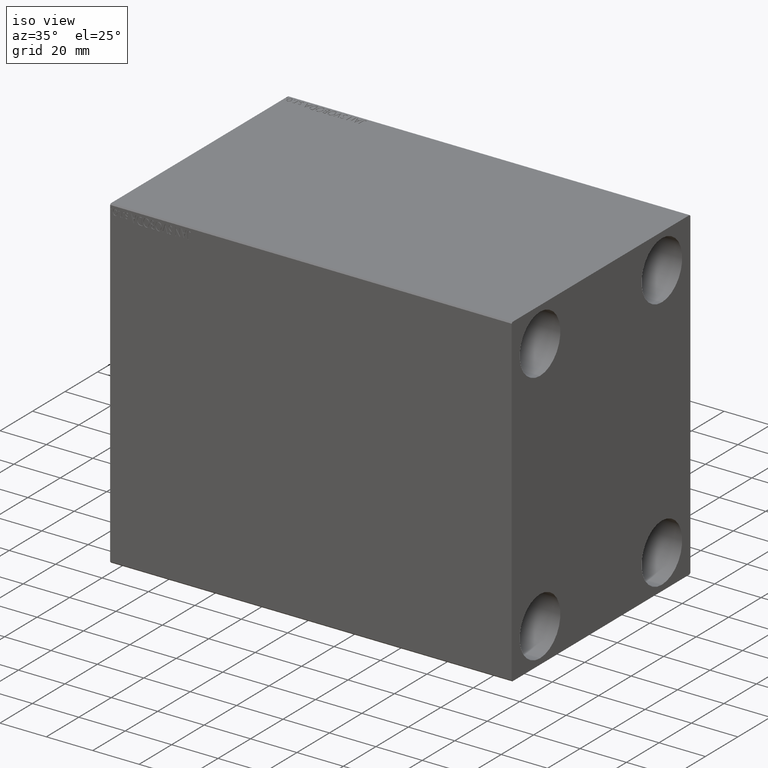
[diagram: clean part render]
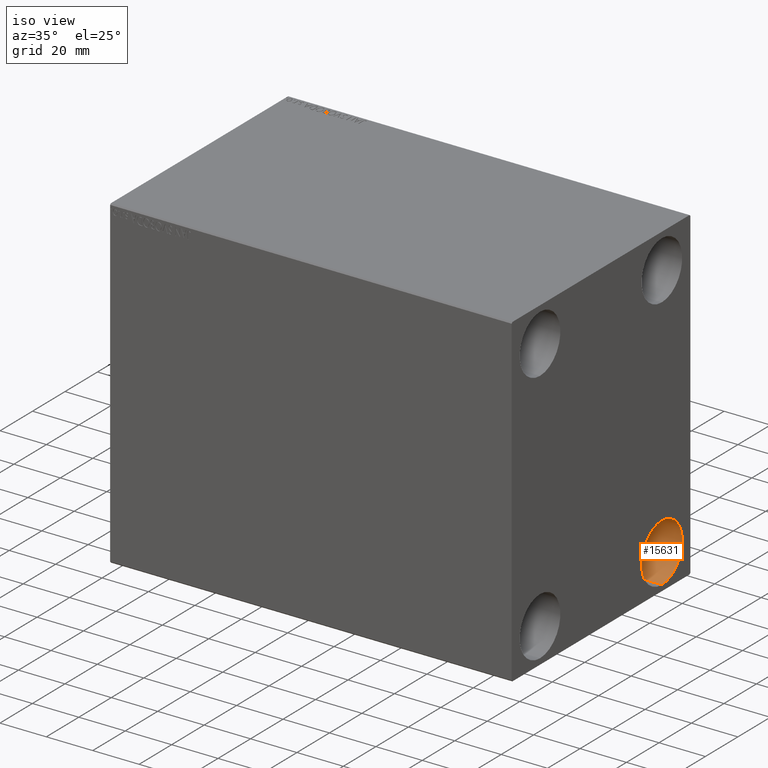
[diagram: same view with one face highlighted and labeled with its STEP entity id]
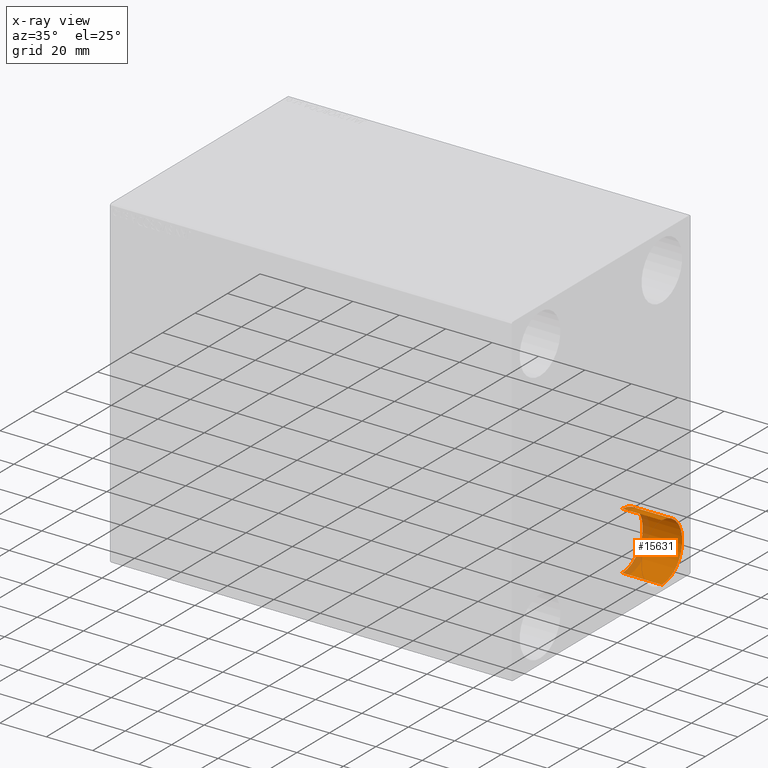
[diagram: x-ray of the same camera — body ghosted, the highlighted face saturated]
A machine part, iso view. The second image highlights one B-rep face of the part: STEP entity #15631.
The next image is the same camera in x-ray: the body ghosted, the highlighted face saturated — about 15% of this face is hidden behind the body in this view.
In plain terms, the highlighted cylindrical surface (edge-blend (fillet) strip) has radius 12.5 mm, axis along (1, 0, 0).
Its self-contained STEP definition (entity closure, byte-faithful):
#3204 = ORIENTED_EDGE ( 'NONE', *, *, #15164, .F. ) ;
#3512 = DIRECTION ( 'NONE',  ( 1.000000000000000000, -0.000000000000000000, -0.000000000000000000 ) ) ;
#3627 = CARTESIAN_POINT ( 'NONE',  ( 155.9999999999999716, 37.49999999999997868, -42.49999999999999289 ) ) ;
#4014 = EDGE_CURVE ( 'NONE', #22509, #5071, #6521, .T. ) ;
#5071 = VERTEX_POINT ( 'NONE', #27363 ) ;
#6521 = LINE ( 'NONE', #3627, #23792 ) ;
#7095 = CARTESIAN_POINT ( 'NONE',  ( 155.9999999999999716, 37.49999999999997868, -67.49999999999998579 ) ) ;
#8962 = CIRCLE ( 'NONE', #14659, 12.49999999999999645 ) ;
#9147 = DIRECTION ( 'NONE',  ( 0.000000000000000000, 0.000000000000000000, 1.000000000000000000 ) ) ;
#9489 = LINE ( 'NONE', #23087, #10538 ) ;
#10538 = VECTOR ( 'NONE', #30224, 1000.000000000000000 ) ;
#13211 = DIRECTION ( 'NONE',  ( 1.000000000000000000, -0.000000000000000000, -0.000000000000000000 ) ) ;
#14659 = AXIS2_PLACEMENT_3D ( 'NONE', #42583, #19181, #9147 ) ;
#15164 = EDGE_CURVE ( 'NONE', #5071, #31842, #8962, .T. ) ;
#15631 = ADVANCED_FACE ( 'NONE', ( #36959 ), #34055, .F. ) ;
#17810 = EDGE_CURVE ( 'NONE', #22509, #37788, #43198, .T. ) ;
#18799 = ORIENTED_EDGE ( 'NONE', *, *, #19918, .T. ) ;
#19181 = DIRECTION ( 'NONE',  ( -1.000000000000000000, -0.000000000000000000, -0.000000000000000000 ) ) ;
#19720 = DIRECTION ( 'NONE',  ( 0.000000000000000000, 0.000000000000000000, 1.000000000000000000 ) ) ;
#19918 = EDGE_CURVE ( 'NONE', #37788, #31842, #9489, .T. ) ;
#20006 = CARTESIAN_POINT ( 'NONE',  ( 155.9999999999999716, 37.49999999999997868, -54.99999999999999289 ) ) ;
#22431 = CARTESIAN_POINT ( 'NONE',  ( 173.0000000000000000, 37.49999999999997868, -67.49999999999998579 ) ) ;
#22509 = VERTEX_POINT ( 'NONE', #41005 ) ;
#23030 = ORIENTED_EDGE ( 'NONE', *, *, #17810, .T. ) ;
#23064 = CARTESIAN_POINT ( 'NONE',  ( 155.9999999999999716, 37.49999999999997868, -54.99999999999999289 ) ) ;
#23087 = CARTESIAN_POINT ( 'NONE',  ( 155.9999999999999716, 37.49999999999997868, -67.49999999999998579 ) ) ;
#23792 = VECTOR ( 'NONE', #13211, 1000.000000000000000 ) ;
#27363 = CARTESIAN_POINT ( 'NONE',  ( 173.0000000000000000, 37.49999999999997868, -42.49999999999999289 ) ) ;
#30224 = DIRECTION ( 'NONE',  ( 1.000000000000000000, -0.000000000000000000, -0.000000000000000000 ) ) ;
#30489 = DIRECTION ( 'NONE',  ( 0.000000000000000000, 0.000000000000000000, -1.000000000000000000 ) ) ;
#31842 = VERTEX_POINT ( 'NONE', #22431 ) ;
#32838 = ORIENTED_EDGE ( 'NONE', *, *, #4014, .F. ) ;
#34055 = CYLINDRICAL_SURFACE ( 'NONE', #38884, 12.49999999999999645 ) ;
#35387 = AXIS2_PLACEMENT_3D ( 'NONE', #23064, #36665, #19720 ) ;
#36577 = EDGE_LOOP ( 'NONE', ( #32838, #23030, #18799, #3204 ) ) ;
#36665 = DIRECTION ( 'NONE',  ( -1.000000000000000000, -0.000000000000000000, -0.000000000000000000 ) ) ;
#36959 = FACE_OUTER_BOUND ( 'NONE', #36577, .T. ) ;
#37788 = VERTEX_POINT ( 'NONE', #7095 ) ;
#38884 = AXIS2_PLACEMENT_3D ( 'NONE', #20006, #3512, #30489 ) ;
#41005 = CARTESIAN_POINT ( 'NONE',  ( 155.9999999999999716, 37.49999999999997868, -42.49999999999999289 ) ) ;
#42583 = CARTESIAN_POINT ( 'NONE',  ( 173.0000000000000000, 37.49999999999997868, -54.99999999999999289 ) ) ;
#43198 = CIRCLE ( 'NONE', #35387, 12.49999999999999645 ) ;